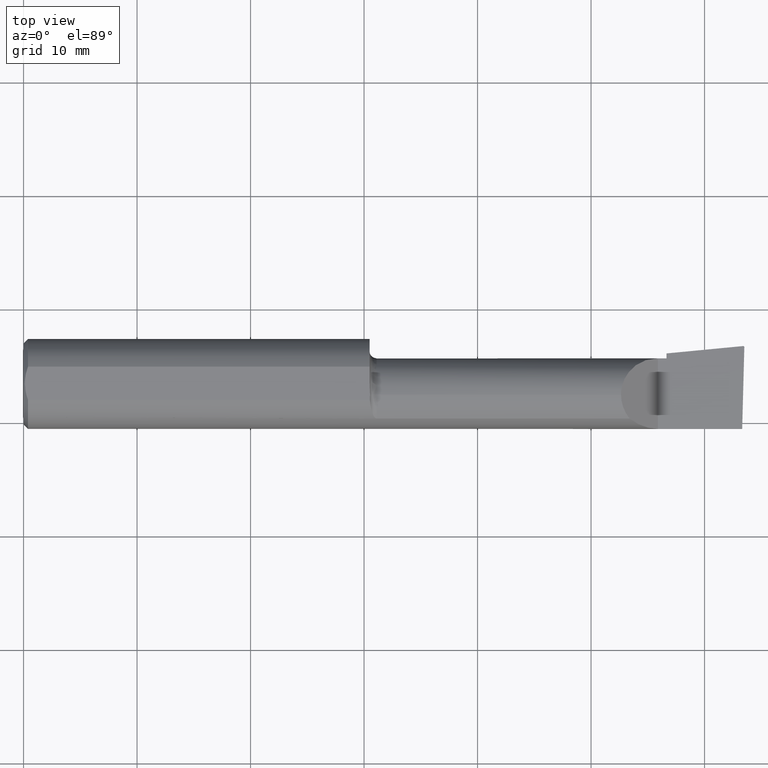
[diagram: clean part render]
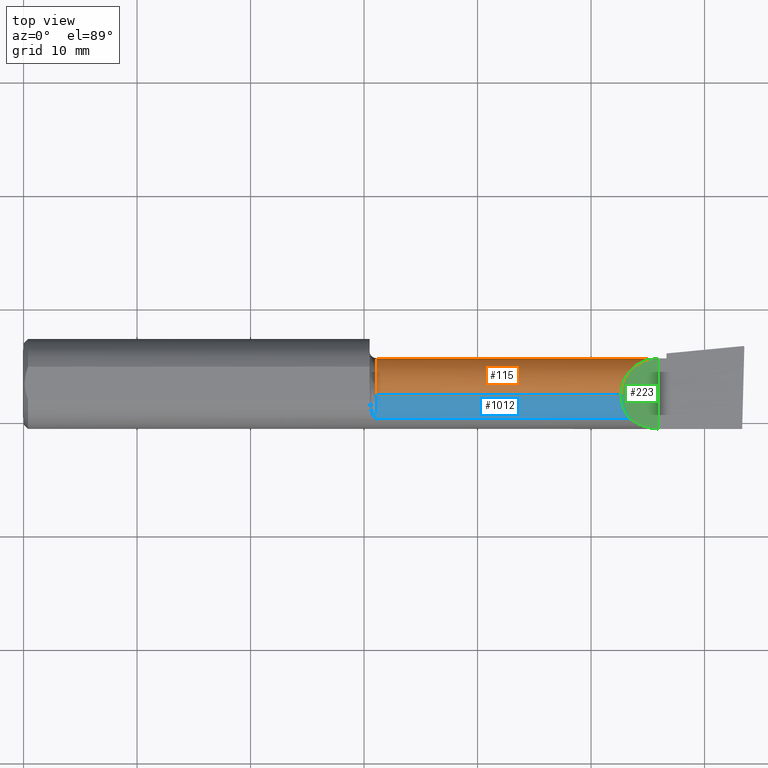
[diagram: same view with three faces highlighted in distinct colors, each labeled with its STEP entity id]
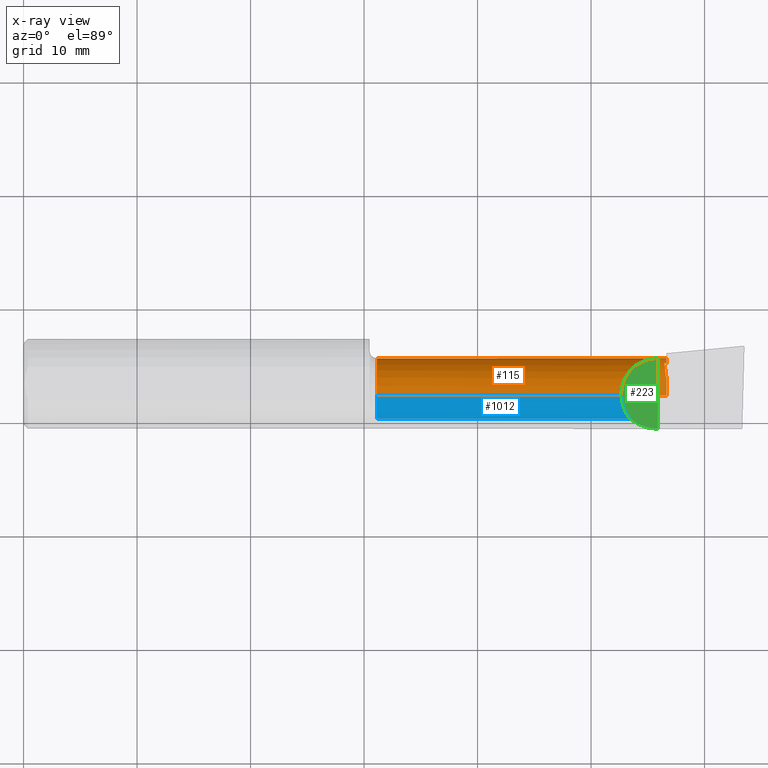
[diagram: x-ray of the same camera — body ghosted, the three highlighted faces saturated]
A machine part, top view with three faces highlighted in distinct colors.
The next image is the same camera in x-ray (body ghosted, the three faces saturated) — at least one of them is partly hidden behind the body in this view.
Their STEP definitions:

[orange] entity #115 — the highlighted cylindrical surface (partial cylindrical patch) has radius 3.2512 mm, axis along (-1, -0, -0).
#3 = CARTESIAN_POINT ( 'NONE',  ( 2.072099999999999831, -0.03909999999999998199, 0.1280000000000000027 ) ) ;
#5 = CARTESIAN_POINT ( 'NONE',  ( 2.072099999999999831, -0.03909999999999998199, 0.1280000000000000027 ) ) ;
#35 = VERTEX_POINT ( 'NONE', #1102 ) ;
#42 = CARTESIAN_POINT ( 'NONE',  ( 2.229999999999999982, -0.03909999999999998199, 0.000000000000000000 ) ) ;
#50 = LINE ( 'NONE', #897, #1104 ) ;
#61 = AXIS2_PLACEMENT_3D ( 'NONE', #545, #613, #234 ) ;
#92 = CARTESIAN_POINT ( 'NONE',  ( 1.199999999999999956, 0.08890000000000002067, -3.414809992080329023E-17 ) ) ;
#115 = ADVANCED_FACE ( 'NONE', ( #152 ), #559, .T. ) ;
#116 =( BOUNDED_CURVE ( )  B_SPLINE_CURVE ( 3, ( #469, #160, #1021, #944 ),
 .UNSPECIFIED., .F., .F. ) 
 B_SPLINE_CURVE_WITH_KNOTS ( ( 4, 4 ),
 ( 2.880444259297416210, 2.895533772334471401 ),
 .UNSPECIFIED. ) 
 CURVE ( )  GEOMETRIC_REPRESENTATION_ITEM ( )  RATIONAL_B_SPLINE_CURVE ( ( 1.000000000000000000, 0.9999810256396992614, 0.9999810256396992614, 1.000000000000000000 ) ) 
 REPRESENTATION_ITEM ( '' )  );
#119 = LINE ( 'NONE', #92, #753 ) ;
#125 = CARTESIAN_POINT ( 'NONE',  ( 2.229999999999999982, -0.03909999999999998199, 0.000000000000000000 ) ) ;
#133 = DIRECTION ( 'NONE',  ( -1.000000000000000000, -0.000000000000000000, -0.000000000000000000 ) ) ;
#152 = FACE_OUTER_BOUND ( 'NONE', #387, .T. ) ;
#159 = CARTESIAN_POINT ( 'NONE',  ( 2.229999999999999982, 0.07171326726048696254, -0.06406574591039972122 ) ) ;
#160 = CARTESIAN_POINT ( 'NONE',  ( 2.225393480893249176, 0.07235353956711521040, -0.06294857447963679575 ) ) ;
#196 = VERTEX_POINT ( 'NONE', #371 ) ;
#213 = AXIS2_PLACEMENT_3D ( 'NONE', #125, #811, #996 ) ;
#214 =( BOUNDED_CURVE ( )  B_SPLINE_CURVE ( 3, ( #264, #949, #502, #3 ),
 .UNSPECIFIED., .F., .F. ) 
 B_SPLINE_CURVE_WITH_KNOTS ( ( 4, 4 ),
 ( 4.713170230464156063, 6.283185307179586232 ),
 .UNSPECIFIED. ) 
 CURVE ( )  GEOMETRIC_REPRESENTATION_ITEM ( )  RATIONAL_B_SPLINE_CURVE ( ( 1.000000000000000000, 0.8049219605640287600, 0.8049219605640287600, 1.000000000000000000 ) ) 
 REPRESENTATION_ITEM ( '' )  );
#234 = DIRECTION ( 'NONE',  ( 0.000000000000000000, 0.000000000000000000, 1.000000000000000000 ) ) ;
#235 = CIRCLE ( 'NONE', #213, 0.1280000000000000027 ) ;
#255 = CARTESIAN_POINT ( 'NONE',  ( 2.227322552677981182, 0.02765334258211936749, -0.1092153434921770139 ) ) ;
#264 = CARTESIAN_POINT ( 'NONE',  ( 2.200000000000000178, 0.08889996093749405470, 9.999999999920123239E-05 ) ) ;
#269 = CARTESIAN_POINT ( 'NONE',  ( 2.227322552677981182, 0.02765334258211936749, -0.1092153434921770139 ) ) ;
#276 = ORIENTED_EDGE ( 'NONE', *, *, #533, .T. ) ;
#301 = EDGE_CURVE ( 'NONE', #595, #196, #119, .T. ) ;
#364 = DIRECTION ( 'NONE',  ( -1.000000000000000000, -0.000000000000000000, -0.000000000000000000 ) ) ;
#371 = CARTESIAN_POINT ( 'NONE',  ( 2.229999999999999982, 0.08890000000000002067, -3.414809992080329023E-17 ) ) ;
#378 = VERTEX_POINT ( 'NONE', #5 ) ;
#382 = EDGE_CURVE ( 'NONE', #500, #1083, #600, .T. ) ;
#387 = EDGE_LOOP ( 'NONE', ( #421, #1063, #1154, #1037, #982, #276, #1202, #1221, #614, #887, #1077 ) ) ;
#398 = DIRECTION ( 'NONE',  ( 1.000000000000000000, 0.000000000000000000, 0.000000000000000000 ) ) ;
#421 = ORIENTED_EDGE ( 'NONE', *, *, #1038, .T. ) ;
#469 = CARTESIAN_POINT ( 'NONE',  ( 2.222988198096450763, 0.07266733599742873639, -0.06238639758823946724 ) ) ;
#473 = CARTESIAN_POINT ( 'NONE',  ( 2.222988198096450763, 0.07266733599742873639, -0.06238639758823946724 ) ) ;
#493 = EDGE_CURVE ( 'NONE', #809, #500, #50, .T. ) ;
#500 = VERTEX_POINT ( 'NONE', #525 ) ;
#502 = CARTESIAN_POINT ( 'NONE',  ( 2.072099999999999831, 0.03583422565783736524, 0.1280000000000000027 ) ) ;
#511 = DIRECTION ( 'NONE',  ( 1.000000000000000000, 0.000000000000000000, 0.000000000000000000 ) ) ;
#525 = CARTESIAN_POINT ( 'NONE',  ( 1.225000000000000089, -0.03909999999999996811, -0.1280000000000000027 ) ) ;
#533 = EDGE_CURVE ( 'NONE', #1067, #595, #1164, .T. ) ;
#545 = CARTESIAN_POINT ( 'NONE',  ( 2.200000000000000178, -0.03909999999999998199, 0.000000000000000000 ) ) ;
#559 = CYLINDRICAL_SURFACE ( 'NONE', #633, 0.1280000000000000027 ) ;
#569 = EDGE_CURVE ( 'NONE', #196, #1174, #235, .T. ) ;
#573 = CARTESIAN_POINT ( 'NONE',  ( 1.199999999999999956, -0.03909999999999998199, 0.000000000000000000 ) ) ;
#595 = VERTEX_POINT ( 'NONE', #1146 ) ;
#600 = CIRCLE ( 'NONE', #796, 0.1280000000000000027 ) ;
#613 = DIRECTION ( 'NONE',  ( -1.000000000000000000, -0.000000000000000000, -0.000000000000000000 ) ) ;
#614 = ORIENTED_EDGE ( 'NONE', *, *, #625, .F. ) ;
#625 = EDGE_CURVE ( 'NONE', #35, #1174, #116, .T. ) ;
#633 = AXIS2_PLACEMENT_3D ( 'NONE', #573, #364, #653 ) ;
#650 = CARTESIAN_POINT ( 'NONE',  ( 2.225886802425433686, 0.04653968584171500750, -0.09767185059622143783 ) ) ;
#653 = DIRECTION ( 'NONE',  ( 0.000000000000000000, 0.000000000000000000, 1.000000000000000000 ) ) ;
#655 = VERTEX_POINT ( 'NONE', #269 ) ;
#687 = CARTESIAN_POINT ( 'NONE',  ( 2.228225329217034645, 0.02786690636191090087, -0.1090848115018932529 ) ) ;
#732 = LINE ( 'NONE', #1210, #743 ) ;
#739 = EDGE_CURVE ( 'NONE', #1067, #378, #214, .T. ) ;
#743 = VECTOR ( 'NONE', #1215, 39.37007874015748143 ) ;
#753 = VECTOR ( 'NONE', #511, 39.37007874015748143 ) ;
#777 =( BOUNDED_CURVE ( )  B_SPLINE_CURVE ( 3, ( #962, #779, #687, #1167 ),
 .UNSPECIFIED., .F., .T. ) 
 B_SPLINE_CURVE_WITH_KNOTS ( ( 4, 4 ),
 ( 3.387651534845114387, 3.393517838976042533 ),
 .UNSPECIFIED. ) 
 CURVE ( )  GEOMETRIC_REPRESENTATION_ITEM ( )  RATIONAL_B_SPLINE_CURVE ( ( 1.000000000000000000, 0.9999971322083762715, 0.9999971322083762715, 1.000000000000000000 ) ) 
 REPRESENTATION_ITEM ( '' )  );
#779 = CARTESIAN_POINT ( 'NONE',  ( 2.229117814217168814, 0.02808008635338989784, -0.1089536536589737620 ) ) ;
#782 = DIRECTION ( 'NONE',  ( 0.000000000000000000, 0.000000000000000000, -1.000000000000000000 ) ) ;
#796 = AXIS2_PLACEMENT_3D ( 'NONE', #1190, #398, #782 ) ;
#797 = CARTESIAN_POINT ( 'NONE',  ( 2.229999999999999982, 0.02829288072248893268, -0.1088218710918186088 ) ) ;
#809 = VERTEX_POINT ( 'NONE', #1073 ) ;
#811 = DIRECTION ( 'NONE',  ( -1.000000000000000000, -0.000000000000000000, -0.000000000000000000 ) ) ;
#825 =( BOUNDED_CURVE ( )  B_SPLINE_CURVE ( 3, ( #255, #650, #1028, #473 ),
 .UNSPECIFIED., .F., .T. ) 
 B_SPLINE_CURVE_WITH_KNOTS ( ( 4, 4 ),
 ( 4.474734701745658683, 4.987808281424285894 ),
 .UNSPECIFIED. ) 
 CURVE ( )  GEOMETRIC_REPRESENTATION_ITEM ( )  RATIONAL_B_SPLINE_CURVE ( ( 1.000000000000000000, 0.9781830033226986965, 0.9781830033226986965, 1.000000000000000000 ) ) 
 REPRESENTATION_ITEM ( '' )  );
#828 = DIRECTION ( 'NONE',  ( -1.000000000000000000, -0.000000000000000000, -0.000000000000000000 ) ) ;
#887 = ORIENTED_EDGE ( 'NONE', *, *, #1225, .F. ) ;
#897 = CARTESIAN_POINT ( 'NONE',  ( 1.199999999999999956, -0.03909999999999996811, -0.1280000000000000027 ) ) ;
#944 = CARTESIAN_POINT ( 'NONE',  ( 2.229999999999999982, 0.07171326726048696254, -0.06406574591039972122 ) ) ;
#949 = CARTESIAN_POINT ( 'NONE',  ( 2.125065797210277552, 0.08884141857369941275, 0.07503420278972211532 ) ) ;
#962 = CARTESIAN_POINT ( 'NONE',  ( 2.229999999999999982, 0.02829288072248893268, -0.1088218710918186088 ) ) ;
#963 = EDGE_CURVE ( 'NONE', #378, #1083, #732, .T. ) ;
#979 = CIRCLE ( 'NONE', #1099, 0.1280000000000000027 ) ;
#982 = ORIENTED_EDGE ( 'NONE', *, *, #739, .F. ) ;
#986 = VERTEX_POINT ( 'NONE', #797 ) ;
#996 = DIRECTION ( 'NONE',  ( 0.000000000000000000, 0.000000000000000000, 1.000000000000000000 ) ) ;
#1006 = CARTESIAN_POINT ( 'NONE',  ( 1.225000000000000089, -0.03909999999999998199, 0.1280000000000000304 ) ) ;
#1021 = CARTESIAN_POINT ( 'NONE',  ( 2.227730792543425764, 0.07203551062040550179, -0.06350836787541178086 ) ) ;
#1028 = CARTESIAN_POINT ( 'NONE',  ( 2.224409793669809954, 0.06187900825971024560, -0.08171405069413473221 ) ) ;
#1037 = ORIENTED_EDGE ( 'NONE', *, *, #963, .F. ) ;
#1038 = EDGE_CURVE ( 'NONE', #986, #809, #979, .T. ) ;
#1063 = ORIENTED_EDGE ( 'NONE', *, *, #493, .T. ) ;
#1067 = VERTEX_POINT ( 'NONE', #1092 ) ;
#1073 = CARTESIAN_POINT ( 'NONE',  ( 2.229999999999999982, -0.03909999999999996811, -0.1279999999999999749 ) ) ;
#1077 = ORIENTED_EDGE ( 'NONE', *, *, #1168, .F. ) ;
#1083 = VERTEX_POINT ( 'NONE', #1006 ) ;
#1092 = CARTESIAN_POINT ( 'NONE',  ( 2.200000000000000178, 0.08889996093749405470, 9.999999999920123239E-05 ) ) ;
#1099 = AXIS2_PLACEMENT_3D ( 'NONE', #42, #133, #1115 ) ;
#1102 = CARTESIAN_POINT ( 'NONE',  ( 2.222988198096450763, 0.07266733599742873639, -0.06238639758823946724 ) ) ;
#1104 = VECTOR ( 'NONE', #828, 39.37007874015748143 ) ;
#1115 = DIRECTION ( 'NONE',  ( 0.000000000000000000, 0.000000000000000000, 1.000000000000000000 ) ) ;
#1146 = CARTESIAN_POINT ( 'NONE',  ( 2.200000000000000178, 0.08890000000000002067, -3.414809992080329023E-17 ) ) ;
#1154 = ORIENTED_EDGE ( 'NONE', *, *, #382, .T. ) ;
#1164 = CIRCLE ( 'NONE', #61, 0.1280000000000000027 ) ;
#1167 = CARTESIAN_POINT ( 'NONE',  ( 2.227322552677981182, 0.02765334258211936749, -0.1092153434921770139 ) ) ;
#1168 = EDGE_CURVE ( 'NONE', #986, #655, #777, .T. ) ;
#1174 = VERTEX_POINT ( 'NONE', #159 ) ;
#1190 = CARTESIAN_POINT ( 'NONE',  ( 1.225000000000000089, -0.03909999999999998199, 0.000000000000000000 ) ) ;
#1202 = ORIENTED_EDGE ( 'NONE', *, *, #301, .T. ) ;
#1210 = CARTESIAN_POINT ( 'NONE',  ( 1.199999999999999956, -0.03909999999999998199, 0.1280000000000000027 ) ) ;
#1215 = DIRECTION ( 'NONE',  ( -1.000000000000000000, -0.000000000000000000, -0.000000000000000000 ) ) ;
#1221 = ORIENTED_EDGE ( 'NONE', *, *, #569, .T. ) ;
#1225 = EDGE_CURVE ( 'NONE', #655, #35, #825, .T. ) ;

[blue] entity #1012 — the highlighted cylindrical surface (partial cylindrical patch) has radius 3.2512 mm, axis along (-1, -0, -0).
#1 = VERTEX_POINT ( 'NONE', #236 ) ;
#4 = ORIENTED_EDGE ( 'NONE', *, *, #261, .T. ) ;
#5 = CARTESIAN_POINT ( 'NONE',  ( 2.072099999999999831, -0.03909999999999998199, 0.1280000000000000027 ) ) ;
#134 = EDGE_CURVE ( 'NONE', #378, #535, #1031, .T. ) ;
#180 = CARTESIAN_POINT ( 'NONE',  ( 2.082579610526008818, -0.09830280903914245805, 0.1175203894739911686 ) ) ;
#227 = CYLINDRICAL_SURFACE ( 'NONE', #685, 0.1280000000000000027 ) ;
#236 = CARTESIAN_POINT ( 'NONE',  ( 1.225000000000000089, -0.1216370843989768857, 0.09783470600413826657 ) ) ;
#261 = EDGE_CURVE ( 'NONE', #1, #535, #847, .T. ) ;
#331 = CARTESIAN_POINT ( 'NONE',  ( 1.199999999999999956, -0.03909999999999998199, 0.000000000000000000 ) ) ;
#378 = VERTEX_POINT ( 'NONE', #5 ) ;
#418 = EDGE_LOOP ( 'NONE', ( #591, #578, #961, #4 ) ) ;
#474 = EDGE_CURVE ( 'NONE', #1083, #1, #601, .T. ) ;
#517 = DIRECTION ( 'NONE',  ( 0.000000000000000000, 0.000000000000000000, 1.000000000000000000 ) ) ;
#535 = VERTEX_POINT ( 'NONE', #728 ) ;
#578 = ORIENTED_EDGE ( 'NONE', *, *, #963, .T. ) ;
#591 = ORIENTED_EDGE ( 'NONE', *, *, #134, .F. ) ;
#601 = CIRCLE ( 'NONE', #1084, 0.1280000000000000027 ) ;
#685 = AXIS2_PLACEMENT_3D ( 'NONE', #331, #1000, #517 ) ;
#722 = DIRECTION ( 'NONE',  ( 0.000000000000000000, 0.000000000000000000, -1.000000000000000000 ) ) ;
#728 = CARTESIAN_POINT ( 'NONE',  ( 2.102265293995860596, -0.1216370843989760669, 0.09783470600413915474 ) ) ;
#732 = LINE ( 'NONE', #1210, #743 ) ;
#738 = DIRECTION ( 'NONE',  ( 1.000000000000000000, 0.000000000000000000, 0.000000000000000000 ) ) ;
#743 = VECTOR ( 'NONE', #1215, 39.37007874015748143 ) ;
#755 = DIRECTION ( 'NONE',  ( 1.000000000000000000, 0.000000000000000000, 0.000000000000000000 ) ) ;
#843 = CARTESIAN_POINT ( 'NONE',  ( 2.072099999999999831, -0.03909999999999998199, 0.1280000000000000027 ) ) ;
#847 = LINE ( 'NONE', #1238, #851 ) ;
#851 = VECTOR ( 'NONE', #755, 39.37007874015748143 ) ;
#909 = FACE_OUTER_BOUND ( 'NONE', #418, .T. ) ;
#959 = CARTESIAN_POINT ( 'NONE',  ( 2.102265293995860596, -0.1216370843989760669, 0.09783470600413915474 ) ) ;
#961 = ORIENTED_EDGE ( 'NONE', *, *, #474, .T. ) ;
#963 = EDGE_CURVE ( 'NONE', #378, #1083, #732, .T. ) ;
#1000 = DIRECTION ( 'NONE',  ( -1.000000000000000000, -0.000000000000000000, -0.000000000000000000 ) ) ;
#1006 = CARTESIAN_POINT ( 'NONE',  ( 1.225000000000000089, -0.03909999999999998199, 0.1280000000000000304 ) ) ;
#1012 = ADVANCED_FACE ( 'NONE', ( #909 ), #227, .T. ) ;
#1016 = CARTESIAN_POINT ( 'NONE',  ( 1.225000000000000089, -0.03909999999999998199, 0.000000000000000000 ) ) ;
#1031 =( BOUNDED_CURVE ( )  B_SPLINE_CURVE ( 3, ( #843, #1232, #180, #959 ),
 .UNSPECIFIED., .F., .F. ) 
 B_SPLINE_CURVE_WITH_KNOTS ( ( 4, 4 ),
 ( 0.000000000000000000, 0.7007890323493037865 ),
 .UNSPECIFIED. ) 
 CURVE ( )  GEOMETRIC_REPRESENTATION_ITEM ( )  RATIONAL_B_SPLINE_CURVE ( ( 1.000000000000000000, 0.9594915740107972102, 0.9594915740107972102, 1.000000000000000000 ) ) 
 REPRESENTATION_ITEM ( '' )  );
#1083 = VERTEX_POINT ( 'NONE', #1006 ) ;
#1084 = AXIS2_PLACEMENT_3D ( 'NONE', #1016, #738, #722 ) ;
#1210 = CARTESIAN_POINT ( 'NONE',  ( 1.199999999999999956, -0.03909999999999998199, 0.1280000000000000027 ) ) ;
#1215 = DIRECTION ( 'NONE',  ( -1.000000000000000000, -0.000000000000000000, -0.000000000000000000 ) ) ;
#1232 = CARTESIAN_POINT ( 'NONE',  ( 2.072099999999999831, -0.06962891318477851255, 0.1280000000000000027 ) ) ;
#1238 = CARTESIAN_POINT ( 'NONE',  ( 1.715000000000000080, -0.1216370843989768857, 0.09783470600413826657 ) ) ;

[green] entity #223 — the highlighted planar face has unit normal (-0.7071, 0, -0.7071).
#2 = LINE ( 'NONE', #96, #572 ) ;
#3 = CARTESIAN_POINT ( 'NONE',  ( 2.072099999999999831, -0.03909999999999998199, 0.1280000000000000027 ) ) ;
#5 = CARTESIAN_POINT ( 'NONE',  ( 2.072099999999999831, -0.03909999999999998199, 0.1280000000000000027 ) ) ;
#30 = ORIENTED_EDGE ( 'NONE', *, *, #1096, .F. ) ;
#56 = CARTESIAN_POINT ( 'NONE',  ( 2.054999999999999716, 0.1000000000000000056, 0.1450999999999999790 ) ) ;
#71 = PLANE ( 'NONE',  #1101 ) ;
#96 = CARTESIAN_POINT ( 'NONE',  ( 2.200000000000000178, 0.1749999999999999889, 9.999999999920123239E-05 ) ) ;
#134 = EDGE_CURVE ( 'NONE', #378, #535, #1031, .T. ) ;
#178 = ORIENTED_EDGE ( 'NONE', *, *, #134, .T. ) ;
#180 = CARTESIAN_POINT ( 'NONE',  ( 2.082579610526008818, -0.09830280903914245805, 0.1175203894739911686 ) ) ;
#199 = ORIENTED_EDGE ( 'NONE', *, *, #739, .T. ) ;
#214 =( BOUNDED_CURVE ( )  B_SPLINE_CURVE ( 3, ( #264, #949, #502, #3 ),
 .UNSPECIFIED., .F., .F. ) 
 B_SPLINE_CURVE_WITH_KNOTS ( ( 4, 4 ),
 ( 4.713170230464156063, 6.283185307179586232 ),
 .UNSPECIFIED. ) 
 CURVE ( )  GEOMETRIC_REPRESENTATION_ITEM ( )  RATIONAL_B_SPLINE_CURVE ( ( 1.000000000000000000, 0.8049219605640287600, 0.8049219605640287600, 1.000000000000000000 ) ) 
 REPRESENTATION_ITEM ( '' )  );
#223 = ADVANCED_FACE ( 'NONE', ( #579 ), #71, .F. ) ;
#262 = EDGE_CURVE ( 'NONE', #795, #535, #651, .T. ) ;
#264 = CARTESIAN_POINT ( 'NONE',  ( 2.200000000000000178, 0.08889996093749405470, 9.999999999920123239E-05 ) ) ;
#378 = VERTEX_POINT ( 'NONE', #5 ) ;
#428 = EDGE_LOOP ( 'NONE', ( #30, #199, #178, #520 ) ) ;
#470 = CARTESIAN_POINT ( 'NONE',  ( 2.200000000000000178, -0.1560999679692472164, 9.999999999916708003E-05 ) ) ;
#481 = CARTESIAN_POINT ( 'NONE',  ( 2.200000000000000178, -0.1560999679692472164, 9.999999999916708003E-05 ) ) ;
#502 = CARTESIAN_POINT ( 'NONE',  ( 2.072099999999999831, 0.03583422565783736524, 0.1280000000000000027 ) ) ;
#520 = ORIENTED_EDGE ( 'NONE', *, *, #262, .F. ) ;
#535 = VERTEX_POINT ( 'NONE', #728 ) ;
#572 = VECTOR ( 'NONE', #1223, 39.37007874015748143 ) ;
#579 = FACE_OUTER_BOUND ( 'NONE', #428, .T. ) ;
#651 =( BOUNDED_CURVE ( )  B_SPLINE_CURVE ( 3, ( #470, #1242, #759, #1050 ),
 .UNSPECIFIED., .F., .F. ) 
 B_SPLINE_CURVE_WITH_KNOTS ( ( 4, 4 ),
 ( 4.713029595418891660, 5.389756358534060432 ),
 .UNSPECIFIED. ) 
 CURVE ( )  GEOMETRIC_REPRESENTATION_ITEM ( )  RATIONAL_B_SPLINE_CURVE ( ( 1.000000000000000000, 0.9621994625444685312, 0.9621994625444685312, 1.000000000000000000 ) ) 
 REPRESENTATION_ITEM ( '' )  );
#728 = CARTESIAN_POINT ( 'NONE',  ( 2.102265293995860596, -0.1216370843989760669, 0.09783470600413915474 ) ) ;
#739 = EDGE_CURVE ( 'NONE', #1067, #378, #214, .T. ) ;
#745 = DIRECTION ( 'NONE',  ( -0.7071067811865461294, 0.000000000000000000, 0.7071067811865487940 ) ) ;
#759 = CARTESIAN_POINT ( 'NONE',  ( 2.130240550987920312, -0.1441380433518480719, 0.06985944901207970237 ) ) ;
#795 = VERTEX_POINT ( 'NONE', #481 ) ;
#843 = CARTESIAN_POINT ( 'NONE',  ( 2.072099999999999831, -0.03909999999999998199, 0.1280000000000000027 ) ) ;
#949 = CARTESIAN_POINT ( 'NONE',  ( 2.125065797210277552, 0.08884141857369941275, 0.07503420278972211532 ) ) ;
#959 = CARTESIAN_POINT ( 'NONE',  ( 2.102265293995860596, -0.1216370843989760669, 0.09783470600413915474 ) ) ;
#1031 =( BOUNDED_CURVE ( )  B_SPLINE_CURVE ( 3, ( #843, #1232, #180, #959 ),
 .UNSPECIFIED., .F., .F. ) 
 B_SPLINE_CURVE_WITH_KNOTS ( ( 4, 4 ),
 ( 0.000000000000000000, 0.7007890323493037865 ),
 .UNSPECIFIED. ) 
 CURVE ( )  GEOMETRIC_REPRESENTATION_ITEM ( )  RATIONAL_B_SPLINE_CURVE ( ( 1.000000000000000000, 0.9594915740107972102, 0.9594915740107972102, 1.000000000000000000 ) ) 
 REPRESENTATION_ITEM ( '' )  );
#1045 = DIRECTION ( 'NONE',  ( -0.7071067811865489050, 0.000000000000000000, -0.7071067811865462405 ) ) ;
#1050 = CARTESIAN_POINT ( 'NONE',  ( 2.102265293995860596, -0.1216370843989760669, 0.09783470600413915474 ) ) ;
#1067 = VERTEX_POINT ( 'NONE', #1092 ) ;
#1092 = CARTESIAN_POINT ( 'NONE',  ( 2.200000000000000178, 0.08889996093749405470, 9.999999999920123239E-05 ) ) ;
#1096 = EDGE_CURVE ( 'NONE', #1067, #795, #2, .T. ) ;
#1101 = AXIS2_PLACEMENT_3D ( 'NONE', #56, #1045, #745 ) ;
#1223 = DIRECTION ( 'NONE',  ( 0.000000000000000000, -1.000000000000000000, 0.000000000000000000 ) ) ;
#1232 = CARTESIAN_POINT ( 'NONE',  ( 2.072099999999999831, -0.06962891318477851255, 0.1280000000000000027 ) ) ;
#1242 = CARTESIAN_POINT ( 'NONE',  ( 2.164098640295684106, -0.1560769690153261668, 0.03600135970431547067 ) ) ;